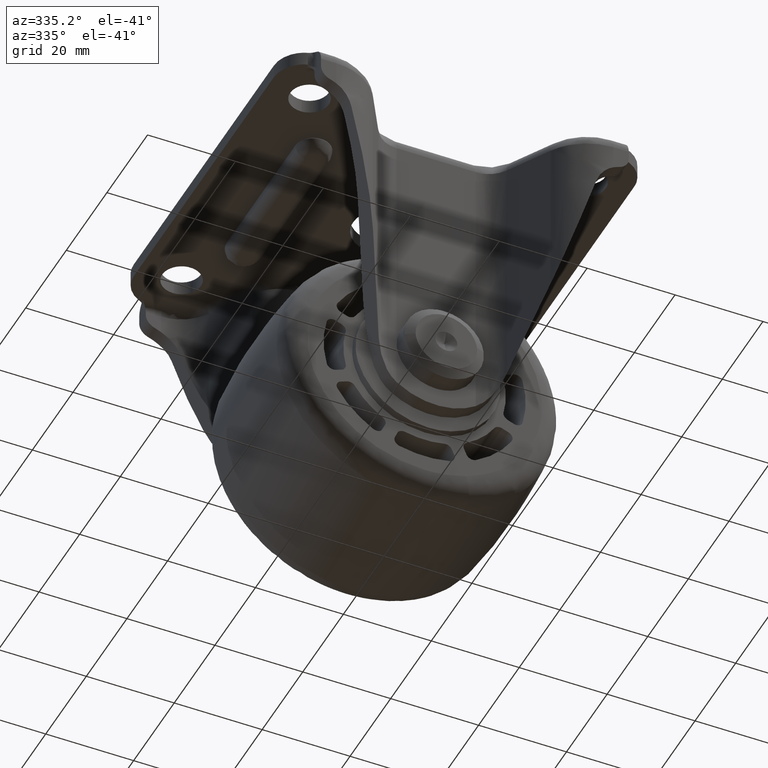
[diagram: clean part render]
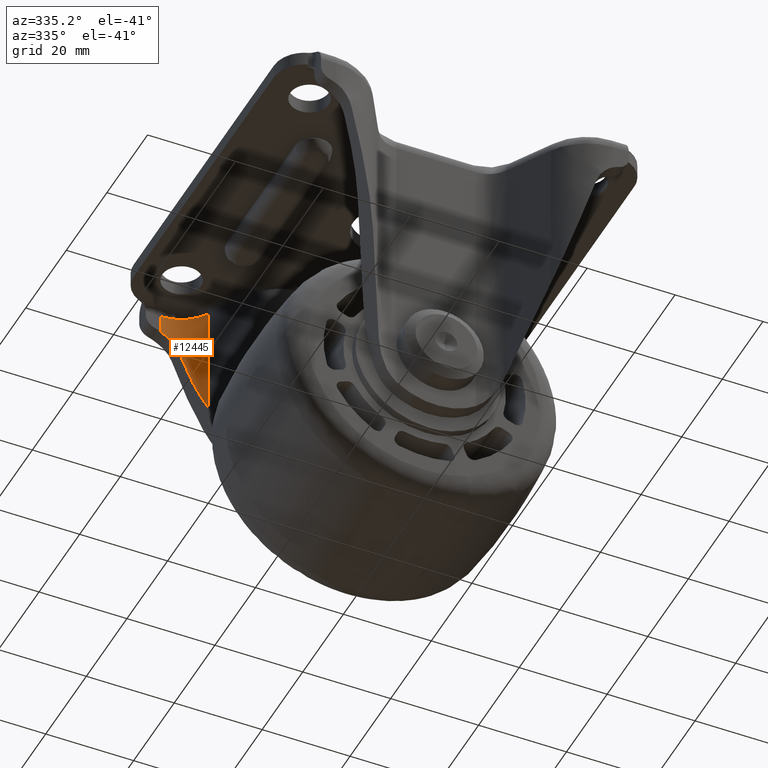
[diagram: same view with one face highlighted and labeled with its STEP entity id]
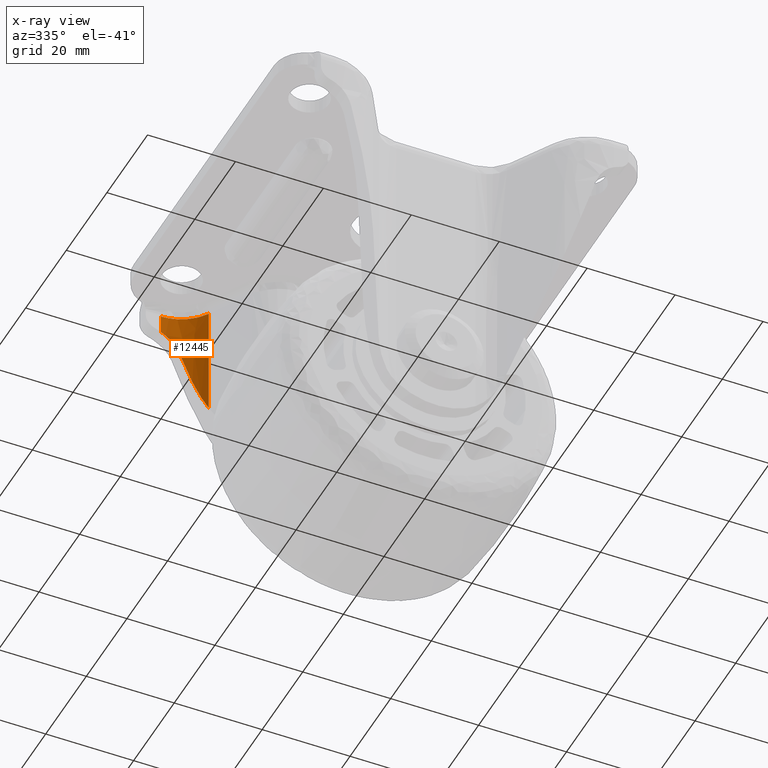
[diagram: x-ray of the same camera — body ghosted, the highlighted face saturated]
A machine part, auxiliary view. The second image highlights one B-rep face of the part: STEP entity #12445.
The next image is the same camera in x-ray: the body ghosted, the highlighted face saturated — about 0% of this face is hidden behind the body in this view.
In plain terms, the highlighted face is a freeform B-spline surface patch.
Its self-contained STEP definition (entity closure, byte-faithful):
#8725=CARTESIAN_POINT('',(-27.896000131527849,40.866445056656801,-13.927999191904981));
#8726=VERTEX_POINT('',#8725);
#8734=CARTESIAN_POINT('',(-31.529708000000099,41.549998999999900,-9.464169913872080));
#8735=VERTEX_POINT('',#8734);
#8736=CARTESIAN_POINT('',(-27.896000131527849,40.866445056656801,-13.927999191904981));
#8737=CARTESIAN_POINT('',(-27.965682776464082,40.893623486463973,-13.689087364010041));
#8738=CARTESIAN_POINT('',(-28.046638923362199,40.924312040264986,-13.456218318847471));
#8739=CARTESIAN_POINT('',(-28.230169142466689,40.990473484745998,-13.001759572039200));
#8740=CARTESIAN_POINT('',(-28.332746164035509,41.025948912117329,-12.780171707546250));
#8741=CARTESIAN_POINT('',(-28.559393485392469,41.099419055787742,-12.347856017342179));
#8742=CARTESIAN_POINT('',(-28.683462530325709,41.137417692486217,-12.137128201608981));
#8743=CARTESIAN_POINT('',(-28.886166412699730,41.194511195589833,-11.829131264238811));
#8744=CARTESIAN_POINT('',(-28.956680811659130,41.213601183985027,-11.727583911844180));
#8745=CARTESIAN_POINT('',(-29.102575354958098,41.251272277546263,-11.528352809248700));
#8746=CARTESIAN_POINT('',(-29.177741858097679,41.269801776170127,-11.430932931213450));
#8747=CARTESIAN_POINT('',(-29.409815321792660,41.324010356351486,-11.145096723558110));
#8748=CARTESIAN_POINT('',(-29.573277761149711,41.358312538937092,-10.963085621013860));
#8749=CARTESIAN_POINT('',(-29.917710958956871,41.420768944500409,-10.615749000820770));
#8750=CARTESIAN_POINT('',(-30.098680627985459,41.448930185729708,-10.450423576907530));
#8751=CARTESIAN_POINT('',(-30.383732315820389,41.484580481928880,-10.215083726314090));
#8752=CARTESIAN_POINT('',(-30.481020555733298,41.495363294494048,-10.138749686908749));
#8753=CARTESIAN_POINT('',(-30.680280065347020,41.514359917278703,-9.990386856329362));
#8754=CARTESIAN_POINT('',(-30.782488400978210,41.522585938362020,-9.918207314514943));
#8755=CARTESIAN_POINT('',(-31.094005628776991,41.542669960915333,-9.709878462192858));
#8756=CARTESIAN_POINT('',(-31.308435713806681,41.549998999999900,-9.581657583300407));
#8757=CARTESIAN_POINT('',(-31.529708000000099,41.549998999999900,-9.464169913872070));
#8758=B_SPLINE_CURVE_WITH_KNOTS('',3,(#8736,#8737,#8738,#8739,#8740,#8741,#8742,#8743,#8744,#8745,#8746,#8747,#8748,#8749,#8750,#8751,#8752,#8753,#8754,#8755,#8756,#8757),.UNSPECIFIED.,.F.,.U.,(4,2,2,2,2,2,2,2,2,2,4),(0.0,0.125000000000000,0.249999999999999,0.374999999999999,0.437499999999999,0.499999999999998,0.624999999999998,0.749999999999998,0.812499999999998,0.874999999999998,1.0),.UNSPECIFIED.);
#8759=EDGE_CURVE('',#8726,#8735,#8758,.T.);
#9013=CARTESIAN_POINT('',(-22.933087414140751,36.658630372762900,-30.943700068562951));
#9014=VERTEX_POINT('',#9013);
#9020=CARTESIAN_POINT('',(-27.896000131527849,40.866445056656801,-13.927999191904981));
#9021=CARTESIAN_POINT('',(-24.690699581727131,39.616276724462502,-24.917601161755972));
#9022=CARTESIAN_POINT('',(-22.933087414140751,36.658630372762900,-30.943700068562951));
#9030=(BOUNDED_CURVE()B_SPLINE_CURVE(2,(#9020,#9021,#9022),.UNSPECIFIED.,.F.,.U.)CURVE()GEOMETRIC_REPRESENTATION_ITEM()QUASI_UNIFORM_CURVE()RATIONAL_B_SPLINE_CURVE((1.0,0.945600064701787,1.0))REPRESENTATION_ITEM(''));
#9031=EDGE_CURVE('',#8726,#9014,#9030,.T.);
#9415=CARTESIAN_POINT('',(-31.529708000000099,41.549998999999900,-5.199997000000289));
#9416=VERTEX_POINT('',#9415);
#9463=CARTESIAN_POINT('',(-22.933087414140751,36.658630372762900,-5.199997000000289));
#9464=VERTEX_POINT('',#9463);
#9494=CARTESIAN_POINT('',(-22.933087414140712,36.658630372762921,-5.199997000000289));
#9495=CARTESIAN_POINT('',(-25.839834196237248,41.549998999999893,-5.199997000000289));
#9496=CARTESIAN_POINT('',(-31.529708000000099,41.549998999999900,-5.199997000000289));
#9504=(BOUNDED_CURVE()B_SPLINE_CURVE(2,(#9494,#9495,#9496),.UNSPECIFIED.,.F.,.U.)CURVE()GEOMETRIC_REPRESENTATION_ITEM()QUASI_UNIFORM_CURVE()RATIONAL_B_SPLINE_CURVE((1.0,0.869155664215652,1.0))REPRESENTATION_ITEM(''));
#9505=EDGE_CURVE('',#9464,#9416,#9504,.T.);
#11626=CARTESIAN_POINT('',(-22.933087414140751,36.658630372762900,-30.943700068562951));
#11627=CARTESIAN_POINT('',(-22.933087414140751,36.658630372762900,-5.199997000000289));
#11628=QUASI_UNIFORM_CURVE('',1,(#11626,#11627),.UNSPECIFIED.,.F.,.U.);
#11629=EDGE_CURVE('',#9014,#9464,#11628,.T.);
#12420=CARTESIAN_POINT('',(-31.616973354983831,41.549618230641613,-31.587292645277021));
#12421=CARTESIAN_POINT('',(-31.616973354983831,41.549618230641613,-4.540314608868375));
#12422=CARTESIAN_POINT('',(-25.536050132966665,41.602685643645898,-31.587292645277017));
#12423=CARTESIAN_POINT('',(-25.536050132966665,41.602685643645898,-4.540314608868375));
#12424=CARTESIAN_POINT('',(-22.691327932528957,36.227929929687612,-31.587292645277024));
#12425=CARTESIAN_POINT('',(-22.691327932528957,36.227929929687612,-4.540314608868375));
#12433=(BOUNDED_SURFACE()B_SPLINE_SURFACE(1,2,((#12420,#12422,#12424),(#12421,#12423,#12425)),.UNSPECIFIED.,.F.,.F.,.U.)B_SPLINE_SURFACE_WITH_KNOTS((2,2),(3,3),(0.0,27.046978036408639),(0.0,11.207503224645119),.UNSPECIFIED.)GEOMETRIC_REPRESENTATION_ITEM()RATIONAL_B_SPLINE_SURFACE(((1.0,0.853601895289088,0.998089091433794),(1.0,0.853601895289088,0.998089091433794)))REPRESENTATION_ITEM('')SURFACE());
#12434=ORIENTED_EDGE('',*,*,#8759,.F.);
#12435=ORIENTED_EDGE('',*,*,#9031,.T.);
#12436=ORIENTED_EDGE('',*,*,#11629,.T.);
#12437=ORIENTED_EDGE('',*,*,#9505,.T.);
#12438=CARTESIAN_POINT('',(-31.529708000000099,41.549998999999900,-9.464169913872080));
#12439=CARTESIAN_POINT('',(-31.529708000000099,41.549998999999900,-5.199997000000289));
#12440=QUASI_UNIFORM_CURVE('',1,(#12438,#12439),.UNSPECIFIED.,.F.,.U.);
#12441=EDGE_CURVE('',#8735,#9416,#12440,.T.);
#12442=ORIENTED_EDGE('',*,*,#12441,.F.);
#12443=EDGE_LOOP('',(#12434,#12435,#12436,#12437,#12442));
#12444=FACE_OUTER_BOUND('',#12443,.T.);
#12445=ADVANCED_FACE('',(#12444),#12433,.F.);